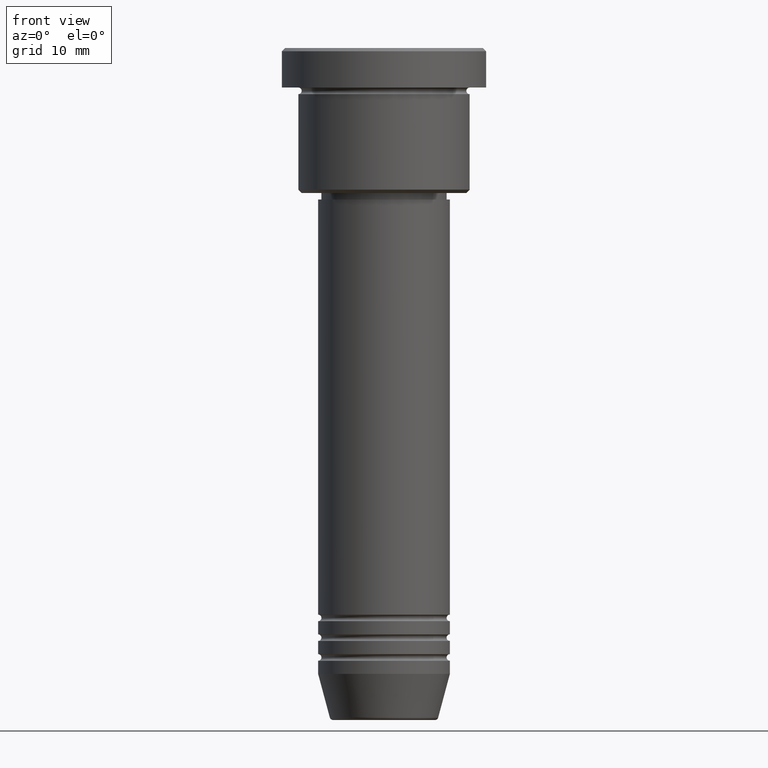
[diagram: clean part render]
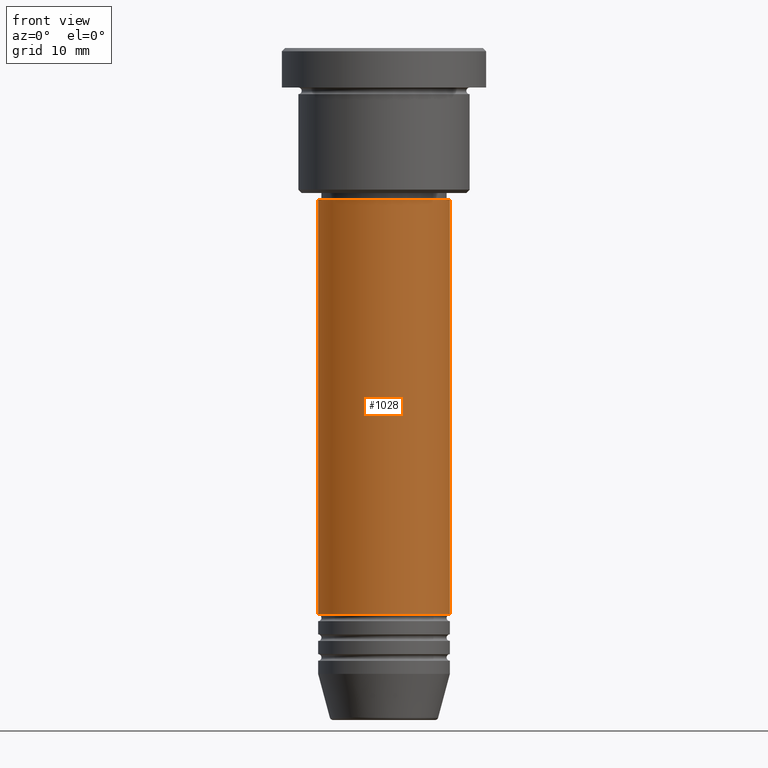
[diagram: same view with one face highlighted and labeled with its STEP entity id]
A machine part, front view. The second image highlights one B-rep face of the part: STEP entity #1028.
In plain terms, the highlighted cylindrical surface (partial cylindrical patch) has radius 10 mm, axis along (-0, -0, 1).
Its self-contained STEP definition (entity closure, byte-faithful):
#48 = ORIENTED_EDGE ( 'NONE', *, *, #176, .T. ) ;
#81 = DIRECTION ( 'NONE',  ( -0.000000000000000000, -0.000000000000000000, 1.000000000000000000 ) ) ;
#109 = EDGE_LOOP ( 'NONE', ( #516, #48, #827, #882 ) ) ;
#168 = DIRECTION ( 'NONE',  ( 1.000000000000000000, 0.000000000000000000, 0.000000000000000000 ) ) ;
#176 = EDGE_CURVE ( 'NONE', #655, #971, #235, .T. ) ;
#195 = CARTESIAN_POINT ( 'NONE',  ( 10.00000000000000000, 0.000000000000000000, -22.99999999999997868 ) ) ;
#220 = CARTESIAN_POINT ( 'NONE',  ( 10.00000000000000000, 0.000000000000000000, -85.99999999999998579 ) ) ;
#235 = CIRCLE ( 'NONE', #608, 10.00000000000000000 ) ;
#237 = AXIS2_PLACEMENT_3D ( 'NONE', #432, #333, #1156 ) ;
#269 = LINE ( 'NONE', #293, #1091 ) ;
#293 = CARTESIAN_POINT ( 'NONE',  ( 10.00000000000000000, 0.000000000000000000, 0.000000000000000000 ) ) ;
#322 = EDGE_CURVE ( 'NONE', #655, #576, #461, .T. ) ;
#327 = EDGE_CURVE ( 'NONE', #971, #454, #269, .T. ) ;
#333 = DIRECTION ( 'NONE',  ( -0.000000000000000000, -0.000000000000000000, 1.000000000000000000 ) ) ;
#393 = VECTOR ( 'NONE', #561, 1000.000000000000000 ) ;
#427 = DIRECTION ( 'NONE',  ( -0.000000000000000000, -0.000000000000000000, 1.000000000000000000 ) ) ;
#432 = CARTESIAN_POINT ( 'NONE',  ( 0.000000000000000000, 0.000000000000000000, -22.99999999999997868 ) ) ;
#443 = CARTESIAN_POINT ( 'NONE',  ( -10.00000000000000000, 1.224646799147353256E-15, -22.99999999999997868 ) ) ;
#454 = VERTEX_POINT ( 'NONE', #195 ) ;
#461 = LINE ( 'NONE', #1087, #393 ) ;
#483 = EDGE_CURVE ( 'NONE', #576, #454, #855, .T. ) ;
#516 = ORIENTED_EDGE ( 'NONE', *, *, #322, .F. ) ;
#521 = CARTESIAN_POINT ( 'NONE',  ( 0.000000000000000000, 0.000000000000000000, -85.99999999999998579 ) ) ;
#548 = DIRECTION ( 'NONE',  ( -0.000000000000000000, -0.000000000000000000, 1.000000000000000000 ) ) ;
#561 = DIRECTION ( 'NONE',  ( -0.000000000000000000, -0.000000000000000000, 1.000000000000000000 ) ) ;
#576 = VERTEX_POINT ( 'NONE', #443 ) ;
#608 = AXIS2_PLACEMENT_3D ( 'NONE', #521, #427, #168 ) ;
#645 = CARTESIAN_POINT ( 'NONE',  ( 0.000000000000000000, 0.000000000000000000, 0.000000000000000000 ) ) ;
#655 = VERTEX_POINT ( 'NONE', #734 ) ;
#734 = CARTESIAN_POINT ( 'NONE',  ( -10.00000000000000000, 1.224646799147353256E-15, -85.99999999999998579 ) ) ;
#822 = FACE_OUTER_BOUND ( 'NONE', #109, .T. ) ;
#827 = ORIENTED_EDGE ( 'NONE', *, *, #327, .T. ) ;
#855 = CIRCLE ( 'NONE', #237, 10.00000000000000000 ) ;
#882 = ORIENTED_EDGE ( 'NONE', *, *, #483, .F. ) ;
#913 = CYLINDRICAL_SURFACE ( 'NONE', #1044, 10.00000000000000000 ) ;
#971 = VERTEX_POINT ( 'NONE', #220 ) ;
#1003 = DIRECTION ( 'NONE',  ( 1.000000000000000000, 0.000000000000000000, 0.000000000000000000 ) ) ;
#1028 = ADVANCED_FACE ( 'NONE', ( #822 ), #913, .T. ) ;
#1044 = AXIS2_PLACEMENT_3D ( 'NONE', #645, #548, #1003 ) ;
#1087 = CARTESIAN_POINT ( 'NONE',  ( -10.00000000000000000, 1.224646799147353256E-15, 0.000000000000000000 ) ) ;
#1091 = VECTOR ( 'NONE', #81, 1000.000000000000000 ) ;
#1156 = DIRECTION ( 'NONE',  ( 1.000000000000000000, 0.000000000000000000, 0.000000000000000000 ) ) ;